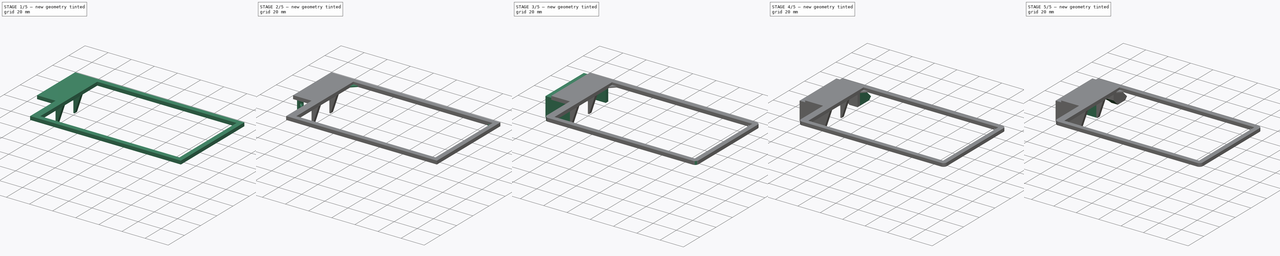
[diagram: build sequence overview — one tinted view per stage of 5, left to right]
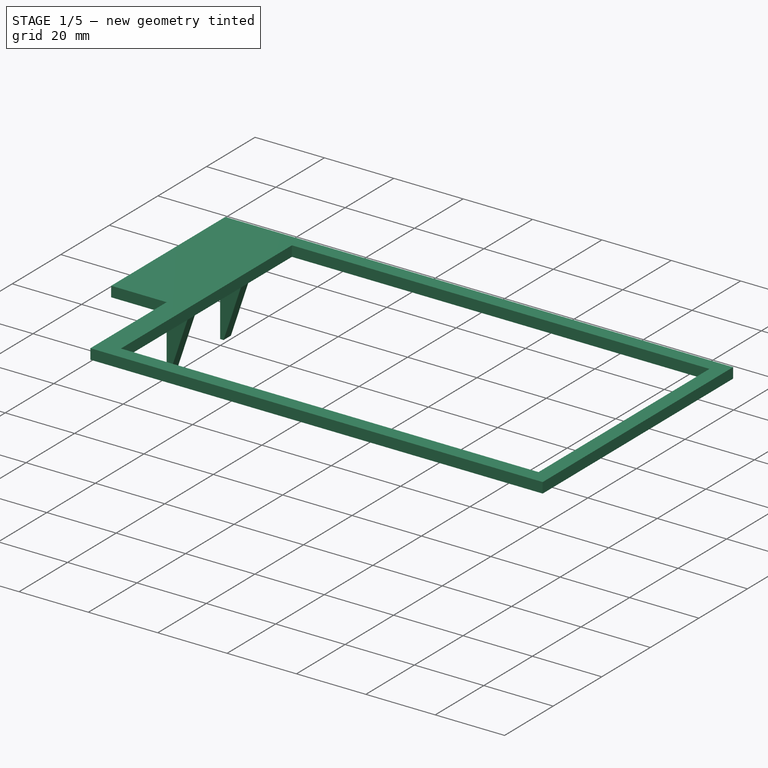
[diagram: stage 1 of 5 — iso view after this stage's code; geometry added in this stage tinted green]
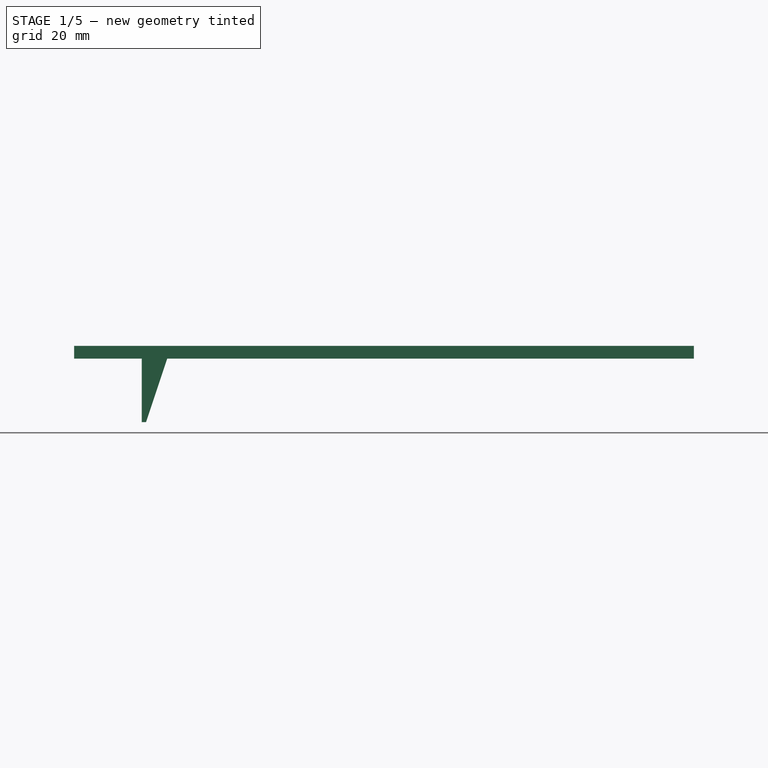
[diagram: stage 1 of 5 — front view after this stage's code; geometry added in this stage tinted green]
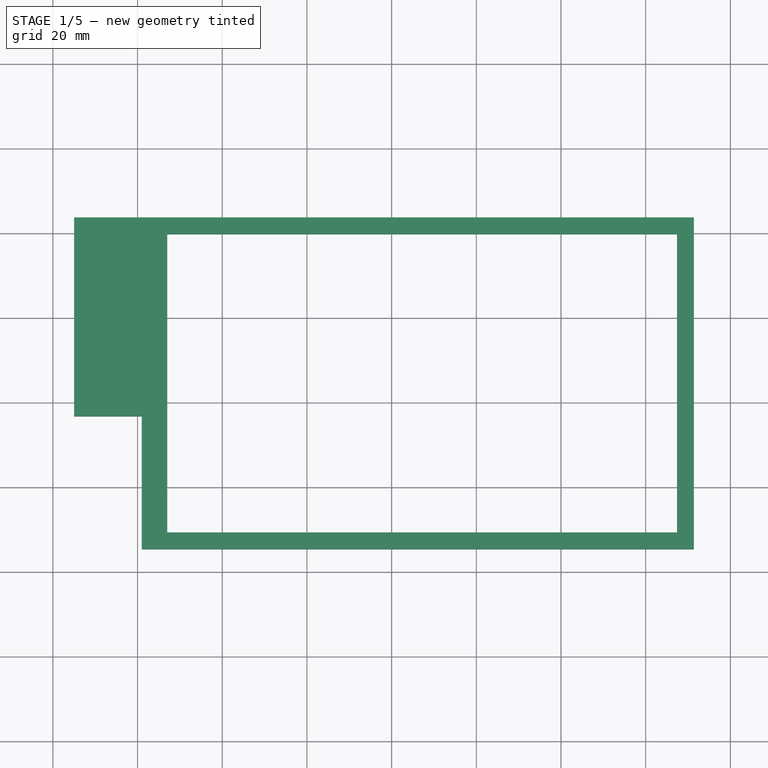
[diagram: stage 1 of 5 — top view after this stage's code; geometry added in this stage tinted green]
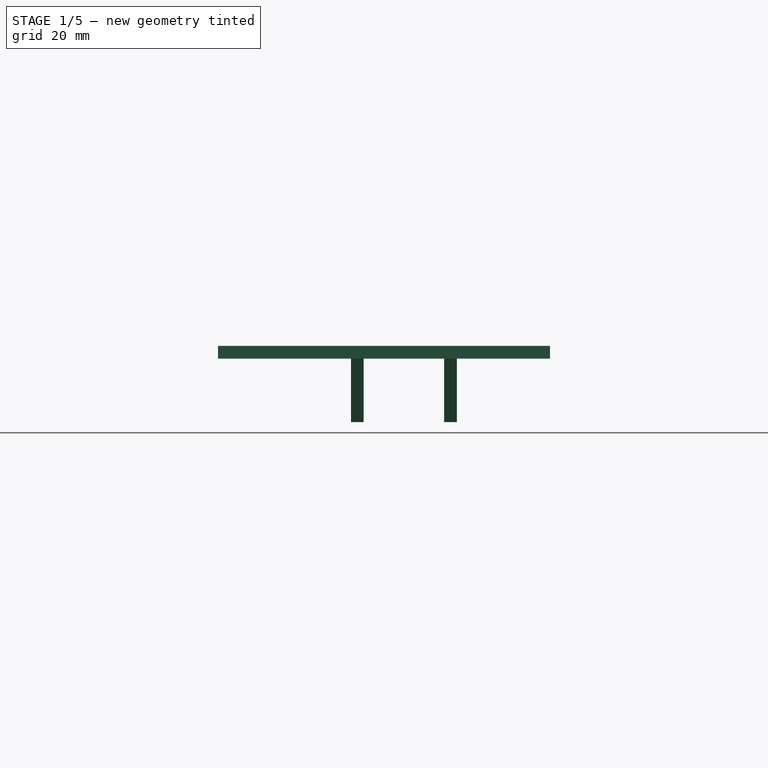
[diagram: stage 1 of 5 — right view after this stage's code; geometry added in this stage tinted green]
FCSTD DOCUMENT  (FreeCAD 0.20R29177 (Git))
Label: workspace_maginifier
License: All rights reserved
LicenseURL: http://en.wikipedia.org/wiki/All_rights_reserved
objects: Sketcher::SketchObject×14, PartDesign::Pad×8, PartDesign::Pocket×6, PartDesign::Body×2, PartDesign::Fillet×1, PartDesign::Chamfer×1
note: 48 computed .brp shape members not serialized (recipe doc carries the construction recipe); baked Part::Feature solids carry a one-line shape summary decoded from their .brp

FEATURE [Sketcher::SketchObject] Sketch007  label="Magnifier Lens Base Sketch"
  AttachmentOffset = pos=(0,0,6.75) rot=(0,0,1;0rad)
  FullyConstrained = true
  MapMode = 5
  Placement = pos=(0,0,6.75) rot=(0,0,1;0rad)
  Support = -> [XY_Plane001]
  sketch-geometry (16):
    g0: LineSegment StartX=5 StartY=23.5 StartZ=0 EndX=21 EndY=23.5 EndZ=0
    g1: LineSegment StartX=21 StartY=23.5 StartZ=0 EndX=21 EndY=-23.5 EndZ=0
    g2: LineSegment StartX=21 StartY=-23.5 StartZ=0 EndX=5 EndY=-23.5 EndZ=0
    g3: LineSegment StartX=5 StartY=-23.5 StartZ=0 EndX=5 EndY=23.5 EndZ=0
    g4: LineSegment StartX=27 StartY=19.5 StartZ=0 EndX=147.4 EndY=19.5 EndZ=0
    g5: LineSegment StartX=147.4 StartY=19.5 StartZ=0 EndX=147.4 EndY=-50.9 EndZ=0
    g6: LineSegment StartX=147.4 StartY=-50.9 StartZ=0 EndX=27 EndY=-50.9 EndZ=0
    g7: LineSegment StartX=27 StartY=-50.9 StartZ=0 EndX=27 EndY=19.5 EndZ=0
    g8: LineSegment StartX=21 StartY=23.5 StartZ=0 EndX=151.4 EndY=23.5 EndZ=0
    g9: LineSegment StartX=151.4 StartY=23.5 StartZ=0 EndX=151.4 EndY=-54.9 EndZ=0
    g10: LineSegment StartX=151.4 StartY=-54.9 StartZ=0 EndX=21 EndY=-54.9 EndZ=0
    g11: LineSegment StartX=21 StartY=-54.9 StartZ=0 EndX=21 EndY=-23.5 EndZ=0
    g12: LineSegment StartX=147.4 StartY=19.5 StartZ=0 EndX=147.4 EndY=23.5 EndZ=0
    g13: LineSegment StartX=147.4 StartY=-50.9 StartZ=0 EndX=151.4 EndY=-50.9 EndZ=0
    g14: LineSegment StartX=27 StartY=-50.9 StartZ=0 EndX=27 EndY=-54.9 EndZ=0
    g15: LineSegment StartX=27 StartY=19.5 StartZ=0 EndX=21 EndY=19.5 EndZ=0
  constraints (47):
    c: Coincident(g0,g1)
    c: Coincident(g1,g2)
    c: Coincident(g2,g3)
    c: Coincident(g3,g0)
    c: Horizontal(g0)
    c: Horizontal(g2)
    c: Vertical(g1)
    c: Vertical(g3)
    c: DistanceX(g-1,g2) = 5
    c: DistanceY(g1,g1) = 47
    c: DistanceY(g2,g-1) = 23.5
    c: Coincident(g4,g5)
    c: Coincident(g5,g6)
    c: Coincident(g6,g7)
    c: Coincident(g7,g4)
    c: Horizontal(g4)
    c: Horizontal(g6)
    c: Vertical(g5)
    c: Vertical(g7)
    c: DistanceX(g4,g4) = 120.4
    c: DistanceY(g5,g5) = 70.4
    c: DistanceX(g2,g2) = 16
    c: Coincident(g8,g0)
    c: Horizontal(g8)
    c: Coincident(g9,g8)
    c: Vertical(g9)
    c: Coincident(g10,g9)
    c: Horizontal(g10)
    c: Coincident(g11,g10)
    c: Coincident(g11,g2)
    c: Vertical(g11)
    c: Coincident(g12,g4)
    c: PointOnObject(g12,g8)
    c: Vertical(g12)
    c: Coincident(g13,g5)
    c: PointOnObject(g13,g9)
    c: Horizontal(g13)
    c: Coincident(g14,g6)
    c: Vertical(g14)
    c: PointOnObject(g14,g10)
    c: DistanceY(g14,g14) = 4
    c: Equal(g14,g13)
    c: Equal(g13,g12)
    c: Coincident(g15,g4)
    c: PointOnObject(g15,g1)
    c: Horizontal(g15)
    c: DistanceX(g15,g15) = 6
FEATURE [PartDesign::Pad] Pad004  label="Magnifier Lens Base"
  Direction = (0,0,1)
  Length = 3
  Length2 = 10
  Profile = -> Sketch007
  ReferenceAxis = -> Sketch007 [N_Axis]
  Type = 0
FEATURE [PartDesign::Body] Body  label="lens_and_arm_mount"
  Group = -> [Sketch,Pad,Sketch001,Pad001,Sketch002,Pocket,Sketch003,Pad002,Sketch004,Pocket001,Sketch005,Pocket002,Sketch006,Pad003,Sketch008,Pocket003]
  Origin = -> Origin
  Tip = -> Pocket003
FEATURE [Sketcher::SketchObject] Sketch009  label="Magnifier Base Support Sketch"
  ExternalGeometry = -> [Pad004]
  FullyConstrained = true
  MapMode = 5
  Placement = pos=(0,0,6.75) rot=(1,0,0;3.14159rad)
  Support = -> [Pad004]
  sketch-geometry (11):
    g0: LineSegment StartX=27 StartY=1.5 StartZ=0 EndX=21 EndY=1.5 EndZ=0
    g1: LineSegment StartX=21 StartY=1.5 StartZ=0 EndX=21 EndY=-1.5 EndZ=0
    g2: LineSegment StartX=21 StartY=-1.5 StartZ=0 EndX=27 EndY=-1.5 EndZ=0
    g3: LineSegment StartX=27 StartY=-1.5 StartZ=0 EndX=27 EndY=1.5 EndZ=0
    g4: LineSegment StartX=27 StartY=23.5 StartZ=0 EndX=21 EndY=23.5 EndZ=0
    g5: LineSegment StartX=21 StartY=23.5 StartZ=0 EndX=21 EndY=20.5 EndZ=0
    g6: LineSegment StartX=21 StartY=20.5 StartZ=0 EndX=27 EndY=20.5 EndZ=0
    g7: LineSegment StartX=27 StartY=20.5 StartZ=0 EndX=27 EndY=23.5 EndZ=0
    g8: LineSegment StartX=21 StartY=20.5 StartZ=0 EndX=21 EndY=1.5 EndZ=0
    g9: LineSegment StartX=27 StartY=-19.5 StartZ=0 EndX=27 EndY=-1.5 EndZ=0
    g10: LineSegment StartX=27 StartY=1.5 StartZ=0 EndX=27 EndY=20.5 EndZ=0
  constraints (30):
    c: Coincident(g0,g1)
    c: Coincident(g1,g2)
    c: Coincident(g2,g3)
    c: Coincident(g3,g0)
    c: Horizontal(g0)
    c: Horizontal(g2)
    c: Vertical(g1)
    c: Vertical(g3)
    c: PointOnObject(g0,g-3)
    c: Coincident(g4,g5)
    c: Coincident(g5,g6)
    c: Coincident(g6,g7)
    c: Coincident(g7,g4)
    c: Horizontal(g4)
    c: Horizontal(g6)
    c: Vertical(g5)
    c: Vertical(g7)
    c: PointOnObject(g4,g-3)
    c: Coincident(g8,g5)
    c: Coincident(g8,g0)
    c: Vertical(g8)
    c: DistanceX(g4,g4) = 6
    c: Coincident(g9,g-3)
    c: Coincident(g9,g2)
    c: Coincident(g10,g0)
    c: Coincident(g10,g6)
    c: DistanceY(g3,g3) = 3
    c: DistanceY(g7,g7) = 3
    c: DistanceY(g9,g9) = 18
    c: DistanceY(g10,g10) = 19
FEATURE [PartDesign::Pad] Pad005  label="Magnifier Base Support"
  BaseFeature = -> Pad004
  Direction = (0,0,-1)
  Length = 15
  Length2 = 10
  Profile = -> Sketch009
  ReferenceAxis = -> Sketch009 [N_Axis]
  Type = 0
FEATURE [Sketcher::SketchObject] Sketch010  label="Magnifier Base Cut Sketch"
  ExternalGeometry = -> [Pad005]
  FullyConstrained = true
  MapMode = 5
  Placement = pos=(0,-23.5,0) rot=(1,0,0;1.5708rad)
  Support = -> [Pad005]
  sketch-geometry (4):
    g0: LineSegment StartX=21 StartY=-8.25 StartZ=0 EndX=22 EndY=-8.25 EndZ=0
    g1: LineSegment StartX=27 StartY=6.75 StartZ=0 EndX=22 EndY=-8.25 EndZ=0
    g2: LineSegment StartX=22 StartY=-8.25 StartZ=0 EndX=27 EndY=-8.25 EndZ=0
    g3: LineSegment StartX=27 StartY=6.75 StartZ=0 EndX=27 EndY=-8.25 EndZ=0
  constraints (10):
    c: Coincident(g0,g-4)
    c: Horizontal(g0)
    c: Coincident(g1,g-3)
    c: Coincident(g1,g0)
    c: Coincident(g2,g1)
    c: Horizontal(g2)
    c: Coincident(g3,g1)
    c: Coincident(g3,g2)
    c: Vertical(g3)
    c: DistanceX(g0,g0) = 1
FEATURE [PartDesign::Pocket] Pocket004  label="Magnifier Base Cut"
  BaseFeature = -> Pad005
  Direction = (0,1,-2e-16)
  Length = 5
  Length2 = 5
  Profile = -> Sketch010
  ReferenceAxis = -> Sketch010 [N_Axis]
  Refine = true
  Type = 1
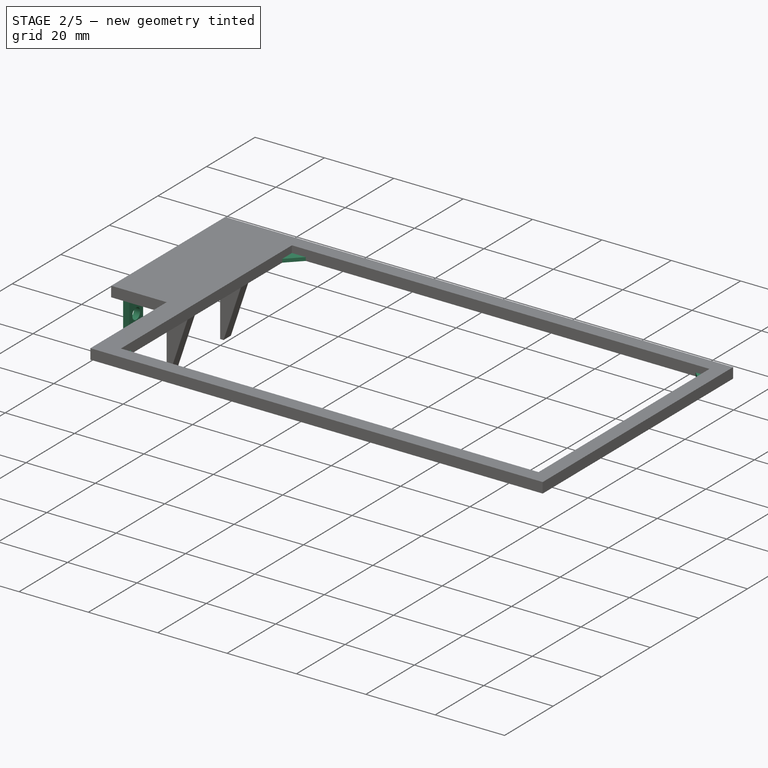
[diagram: stage 2 of 5 — iso view after this stage's code; geometry added in this stage tinted green]
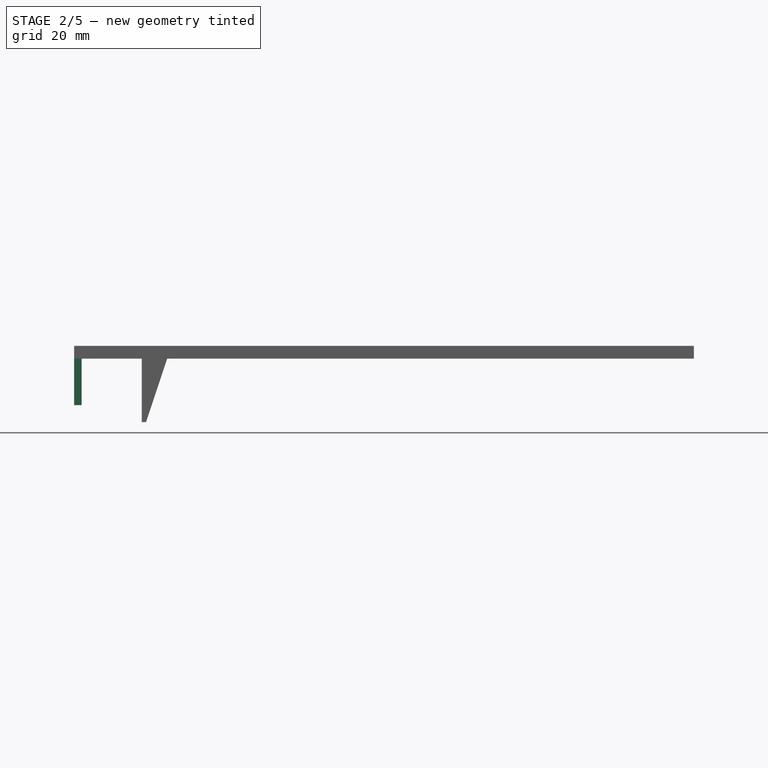
[diagram: stage 2 of 5 — front view after this stage's code; geometry added in this stage tinted green]
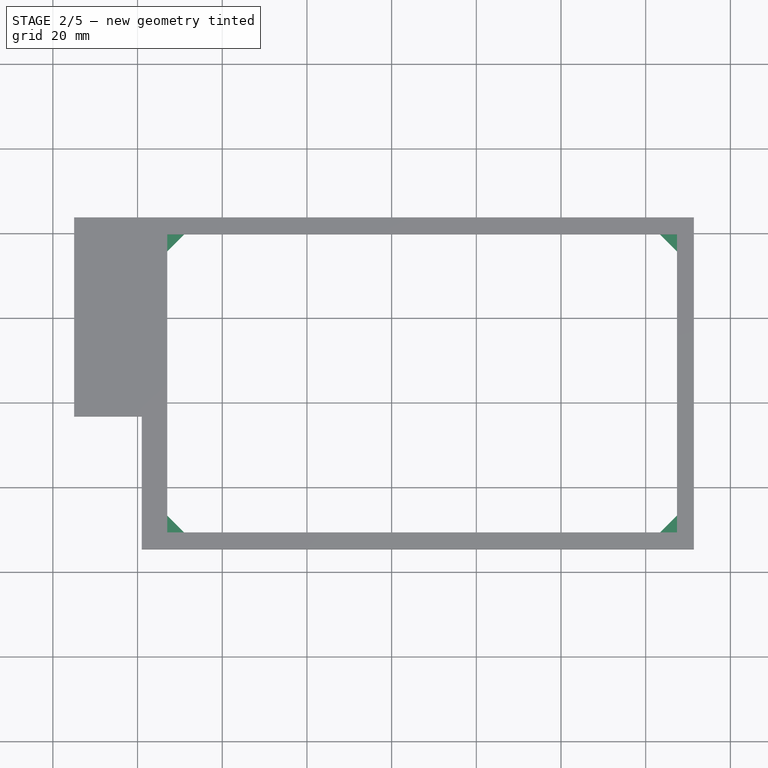
[diagram: stage 2 of 5 — top view after this stage's code; geometry added in this stage tinted green]
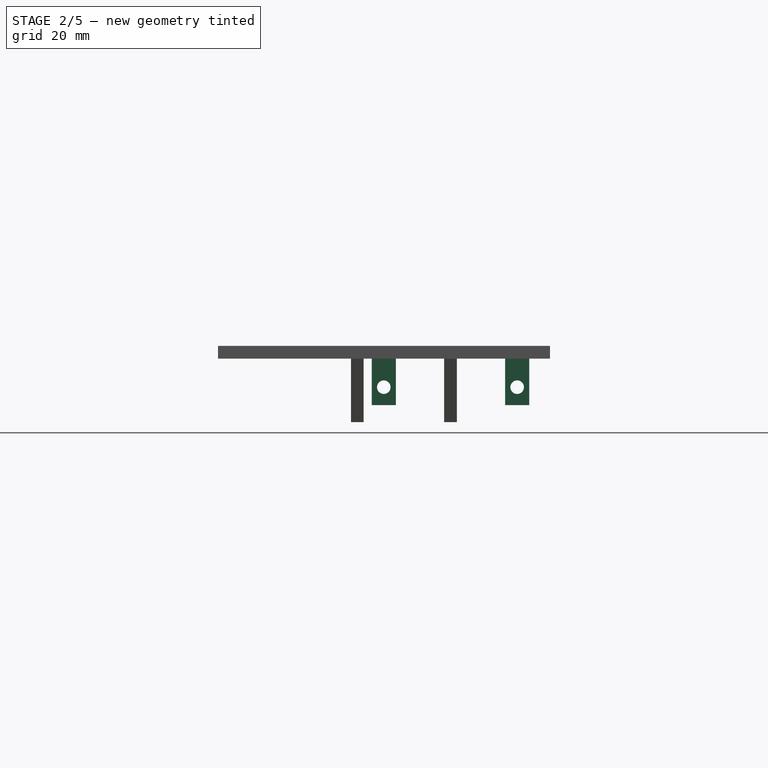
[diagram: stage 2 of 5 — right view after this stage's code; geometry added in this stage tinted green]
FEATURE [Sketcher::SketchObject] Sketch011  label="Maginfier Lens Hold Corner Sketch"
  ExternalGeometry = -> [Pocket004]
  FullyConstrained = true
  MapMode = 5
  Placement = pos=(0,0,6.75) rot=(1,0,0;3.14159rad)
  Support = -> [Pocket004]
  sketch-geometry (20):
    g0: LineSegment StartX=25 StartY=52.9 StartZ=0 EndX=25 EndY=44.9 EndZ=0
    g1: LineSegment StartX=25 StartY=52.9 StartZ=0 EndX=33 EndY=52.9 EndZ=0
    g2: LineSegment StartX=25 StartY=44.9 StartZ=0 EndX=33 EndY=52.9 EndZ=0
    g3: LineSegment StartX=25 StartY=-21.5 StartZ=0 EndX=25 EndY=-13.5 EndZ=0
    g4: LineSegment StartX=25 StartY=-13.5 StartZ=0 EndX=33 EndY=-21.5 EndZ=0
    g5: LineSegment StartX=33 StartY=-21.5 StartZ=0 EndX=25 EndY=-21.5 EndZ=0
    g6: LineSegment StartX=149.4 StartY=-21.5 StartZ=0 EndX=149.4 EndY=-13.5 EndZ=0
    g7: LineSegment StartX=149.4 StartY=-13.5 StartZ=0 EndX=141.4 EndY=-21.5 EndZ=0
    g8: LineSegment StartX=141.4 StartY=-21.5 StartZ=0 EndX=149.4 EndY=-21.5 EndZ=0
    g9: LineSegment StartX=149.4 StartY=52.9 StartZ=0 EndX=141.4 EndY=52.9 EndZ=0
    g10: LineSegment StartX=141.4 StartY=52.9 StartZ=0 EndX=149.4 EndY=44.9 EndZ=0
    g11: LineSegment StartX=149.4 StartY=44.9 StartZ=0 EndX=149.4 EndY=52.9 EndZ=0
    g12: LineSegment StartX=27 StartY=50.9 StartZ=0 EndX=27 EndY=52.9 EndZ=0
    g13: LineSegment StartX=27 StartY=50.9 StartZ=0 EndX=25 EndY=50.9 EndZ=0
    g14: LineSegment StartX=27 StartY=-19.5 StartZ=0 EndX=27 EndY=-21.5 EndZ=0
    g15: LineSegment StartX=27 StartY=-19.5 StartZ=0 EndX=25 EndY=-19.5 EndZ=0
    g16: LineSegment StartX=147.4 StartY=-19.5 StartZ=0 EndX=147.4 EndY=-21.5 EndZ=0
    g17: LineSegment StartX=147.4 StartY=-19.5 StartZ=0 EndX=149.4 EndY=-19.5 EndZ=0
    g18: LineSegment StartX=147.4 StartY=50.9 StartZ=0 EndX=147.4 EndY=52.9 EndZ=0
    g19: LineSegment StartX=147.4 StartY=50.9 StartZ=0 EndX=149.4 EndY=50.9 EndZ=0
  constraints (60):
    c: Vertical(g0)
    c: Coincident(g1,g0)
    c: Horizontal(g1)
    c: Coincident(g2,g0)
    c: Coincident(g2,g1)
    c: Vertical(g3)
    c: Coincident(g4,g3)
    c: Coincident(g5,g4)
    c: Coincident(g5,g3)
    c: Horizontal(g5)
    c: Vertical(g6)
    c: Coincident(g7,g6)
    c: Coincident(g8,g7)
    c: Coincident(g8,g6)
    c: Horizontal(g8)
    c: Horizontal(g9)
    c: Coincident(g10,g9)
    c: Coincident(g11,g10)
    c: Coincident(g11,g9)
    c: Vertical(g11)
    c: Coincident(g12,g-3)
    c: PointOnObject(g12,g1)
    c: Coincident(g13,g12)
    c: PointOnObject(g13,g0)
    c: Horizontal(g13)
    c: Vertical(g12)
    c: Coincident(g14,g-4)
    c: PointOnObject(g14,g5)
    c: Vertical(g14)
    c: Coincident(g15,g14)
    c: PointOnObject(g15,g3)
    c: Coincident(g16,g-5)
    c: PointOnObject(g16,g8)
    c: Vertical(g16)
    c: Coincident(g17,g16)
    c: PointOnObject(g17,g6)
    c: Horizontal(g17)
    c: Coincident(g18,g-6)
    c: PointOnObject(g18,g9)
    c: Vertical(g18)
    c: Coincident(g19,g18)
    c: PointOnObject(g19,g11)
    c: Horizontal(g19)
    c: DistanceY(g12,g12) = 2
    c: Equal(g12,g13)
    c: Equal(g13,g14)
    c: Equal(g14,g15)
    c: Equal(g15,g16)
    c: Equal(g16,g17)
    c: Equal(g17,g19)
    c: Equal(g19,g18)
    c: DistanceX(g1,g1) = 8
    c: Equal(g1,g0)
    c: Equal(g0,g3)
    c: Equal(g3,g5)
    c: Equal(g5,g8)
    c: Equal(g8,g6)
    c: Equal(g6,g9)
    c: Equal(g9,g11)
    c: Horizontal(g15)
FEATURE [PartDesign::Pad] Pad006  label="Magnifier Lens Hold Corners"
  BaseFeature = -> Pocket004
  Direction = (0,0,-1)
  Length = 1
  Length2 = 10
  Profile = -> Sketch011
  ReferenceAxis = -> Sketch011 [N_Axis]
  Reversed = true
  Type = 0
FEATURE [Sketcher::SketchObject] Sketch012  label="Screw Tab Sketch"
  ExternalGeometry = -> [Pad006]
  FullyConstrained = true
  MapMode = 5
  Placement = pos=(0,0,6.75) rot=(1,0,0;3.14159rad)
  Support = -> [Pad006]
  sketch-geometry (11):
    g0: LineSegment StartX=5 StartY=18.6 StartZ=0 EndX=6.8 EndY=18.6 EndZ=0
    g1: LineSegment StartX=6.8 StartY=18.6 StartZ=0 EndX=6.8 EndY=12.9 EndZ=0
    g2: LineSegment StartX=6.8 StartY=12.9 StartZ=0 EndX=5 EndY=12.9 EndZ=0
    g3: LineSegment StartX=5 StartY=12.9 StartZ=0 EndX=5 EndY=18.6 EndZ=0
    g4: LineSegment StartX=5 StartY=-12.9 StartZ=0 EndX=6.8 EndY=-12.9 EndZ=0
    g5: LineSegment StartX=6.8 StartY=-12.9 StartZ=0 EndX=6.8 EndY=-18.6 EndZ=0
    g6: LineSegment StartX=6.8 StartY=-18.6 StartZ=0 EndX=5 EndY=-18.6 EndZ=0
    g7: LineSegment StartX=5 StartY=-18.6 StartZ=0 EndX=5 EndY=-12.9 EndZ=0
    g8: LineSegment StartX=5 StartY=23.5 StartZ=0 EndX=5 EndY=18.6 EndZ=0
    g9: LineSegment StartX=5 StartY=-18.6 StartZ=0 EndX=5 EndY=-23.5 EndZ=0
    g10: LineSegment StartX=6.8 StartY=12.9 StartZ=0 EndX=6.8 EndY=-12.9 EndZ=0
  constraints (30):
    c: Coincident(g0,g1)
    c: Coincident(g1,g2)
    c: Coincident(g2,g3)
    c: Coincident(g3,g0)
    c: Horizontal(g0)
    c: Horizontal(g2)
    c: Vertical(g1)
    c: Vertical(g3)
    c: Coincident(g4,g5)
    c: Coincident(g5,g6)
    c: Coincident(g6,g7)
    c: Coincident(g7,g4)
    c: Horizontal(g4)
    c: Horizontal(g6)
    c: Vertical(g5)
    c: Vertical(g7)
    c: Coincident(g8,g-3)
    c: Coincident(g8,g0)
    c: Vertical(g8)
    c: Coincident(g9,g6)
    c: Coincident(g9,g-4)
    c: Vertical(g9)
    c: Coincident(g10,g1)
    c: Coincident(g10,g4)
    c: Vertical(g10)
    c: DistanceX(g0,g0) = 1.8
    c: DistanceY(g9,g9) = 4.9
    c: Equal(g8,g9)
    c: DistanceY(g1,g1) = 5.7
    c: Equal(g1,g5)
FEATURE [PartDesign::Pad] Pad007  label="Screw Tab Pad"
  BaseFeature = -> Pad006
  Direction = (0,0,-1)
  Length = 11
  Length2 = 10
  Profile = -> Sketch012
  ReferenceAxis = -> Sketch012 [N_Axis]
  Type = 0
FEATURE [Sketcher::SketchObject] Sketch013  label="Screw Tab Hole Sketch"
  ExternalGeometry = -> [Pad007]
  FullyConstrained = true
  MapMode = 5
  Placement = pos=(5,0,0) rot=(0.57735,-0.57735,-0.57735;2.0944rad)
  Support = -> [Pad007]
  sketch-geometry (6):
    g0: Circle CenterX=-15.75 CenterY=0 CenterZ=0 NormalX=0 NormalY=0 NormalZ=1 AngleXU=0 Radius=1.6
    g1: Circle CenterX=15.75 CenterY=0 CenterZ=0 NormalX=0 NormalY=0 NormalZ=1 AngleXU=0 Radius=1.6
    g2: LineSegment StartX=-18.6 StartY=-4.25 StartZ=0 EndX=-15.75 EndY=0 EndZ=0
    g3: LineSegment StartX=-15.75 StartY=0 StartZ=0 EndX=-12.9 EndY=-4.25 EndZ=0
    g4: LineSegment StartX=12.9 StartY=-4.25 StartZ=0 EndX=15.75 EndY=0 EndZ=0
    g5: LineSegment StartX=15.75 StartY=0 StartZ=0 EndX=18.6 EndY=-4.25 EndZ=0
  constraints (14):
    c: PointOnObject(g0,g-1)
    c: PointOnObject(g1,g-1)
    c: Coincident(g2,g-3)
    c: Coincident(g2,g0)
    c: Coincident(g3,g0)
    c: Coincident(g3,g-3)
    c: Coincident(g4,g-4)
    c: Coincident(g4,g1)
    c: Coincident(g5,g1)
    c: Coincident(g5,g-4)
    c: Equal(g2,g3)
    c: Equal(g4,g5)
    c: Diameter(g0) = 3.2
    c: Equal(g0,g1)
FEATURE [PartDesign::Pocket] Pocket005  label="Screw Tab Hole"
  BaseFeature = -> Pad007
  Direction = (1,0,0)
  Length = 5
  Length2 = 5
  Profile = -> Sketch013
  ReferenceAxis = -> Sketch013 [N_Axis]
  Type = 2
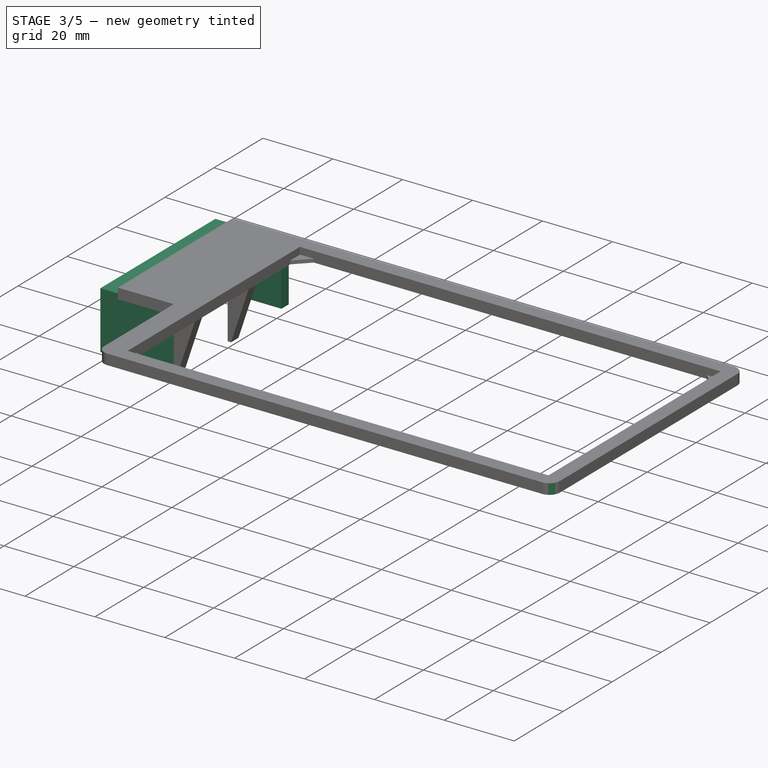
[diagram: stage 3 of 5 — iso view after this stage's code; geometry added in this stage tinted green]
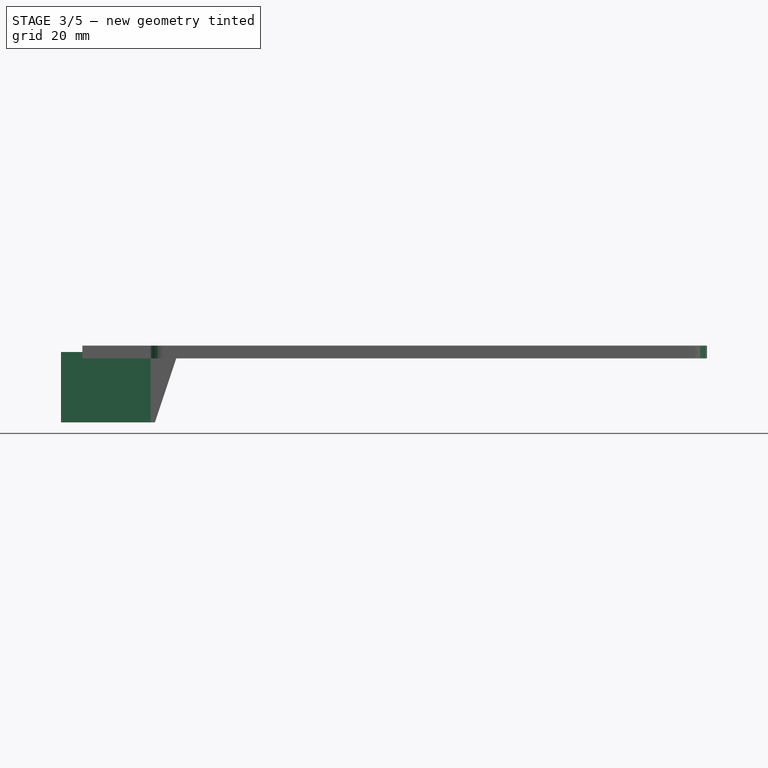
[diagram: stage 3 of 5 — front view after this stage's code; geometry added in this stage tinted green]
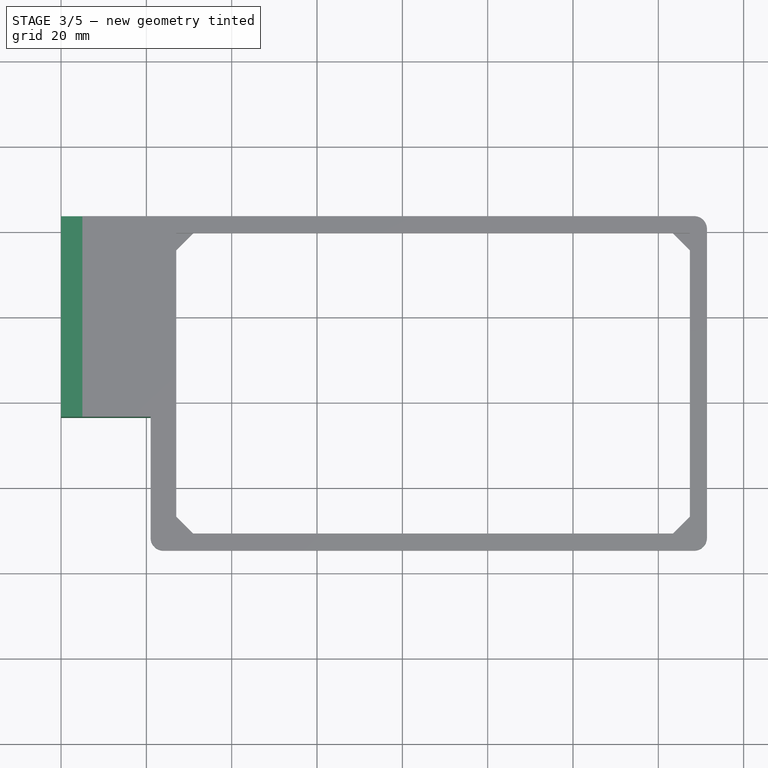
[diagram: stage 3 of 5 — top view after this stage's code; geometry added in this stage tinted green]
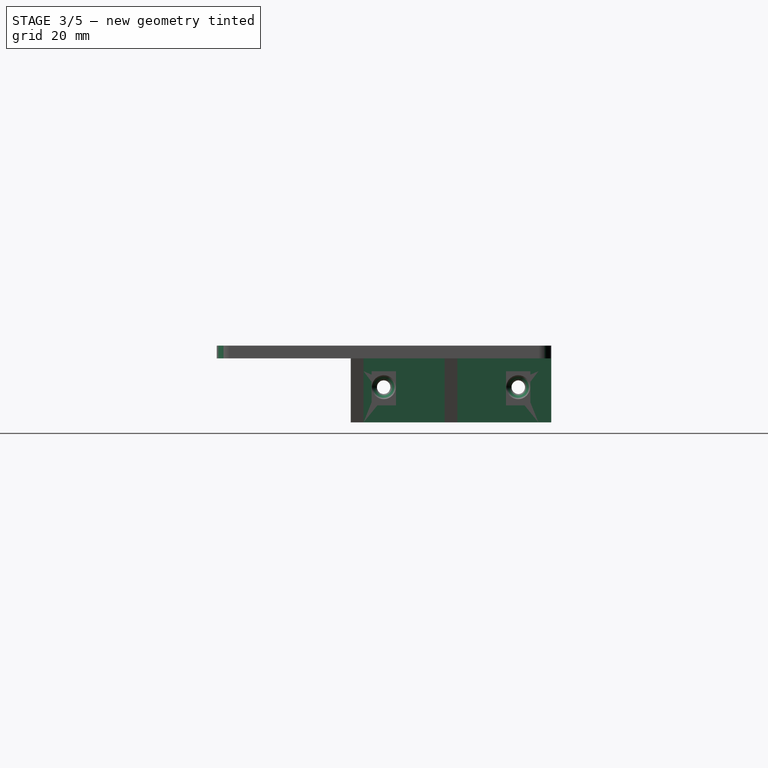
[diagram: stage 3 of 5 — right view after this stage's code; geometry added in this stage tinted green]
FEATURE [Sketcher::SketchObject] Sketch  label="Lens Screw Mount Sketch"
  FullyConstrained = true
  MapMode = 5
  Placement = pos=(0,0,0) rot=(0.57735,0.57735,0.57735;2.0944rad)
  Support = -> [YZ_Plane]
  sketch-geometry (8):
    g0: LineSegment StartX=-23.5 StartY=8.25 StartZ=0 EndX=23.5 EndY=8.25 EndZ=0
    g1: LineSegment StartX=23.5 StartY=8.25 StartZ=0 EndX=23.5 EndY=-8.25 EndZ=0
    g2: LineSegment StartX=23.5 StartY=-8.25 StartZ=0 EndX=-23.5 EndY=-8.25 EndZ=0
    g3: LineSegment StartX=-23.5 StartY=-8.25 StartZ=0 EndX=-23.5 EndY=8.25 EndZ=0
    g4: Circle CenterX=-15.8 CenterY=0 CenterZ=0 NormalX=0 NormalY=0 NormalZ=1 AngleXU=0 Radius=1.6
    g5: Circle CenterX=15.8 CenterY=0 CenterZ=0 NormalX=0 NormalY=0 NormalZ=1 AngleXU=0 Radius=1.6
    g6: LineSegment StartX=-15.8 StartY=0 StartZ=0 EndX=-23.5 EndY=0 EndZ=0
    g7: LineSegment StartX=15.8 StartY=0 StartZ=0 EndX=23.5 EndY=0 EndZ=0
  constraints (22):
    c: Coincident(g0,g1)
    c: Coincident(g1,g2)
    c: Coincident(g2,g3)
    c: Coincident(g3,g0)
    c: Horizontal(g2)
    c: Vertical(g1)
    c: DistanceY(g3,g3) = 16.5
    c: DistanceX(g0,g0) = 47
    c: Symmetric(g0,g0,g-2)
    c: Symmetric(g0,g2,g-1)
    c: PointOnObject(g5,g-1)
    c: PointOnObject(g4,g-1)
    c: Coincident(g6,g4)
    c: PointOnObject(g6,g3)
    c: Horizontal(g6)
    c: Coincident(g7,g5)
    c: PointOnObject(g7,g1)
    c: Horizontal(g7)
    c: Equal(g7,g6)
    c: DistanceX(g6,g6) = 7.7
    c: Diameter(g4) = 3.2
    c: Equal(g4,g5)
FEATURE [PartDesign::Pad] Pad  label="Lens Screw Mount"
  Direction = (1,-2e-16,3e-16)
  Length = 5
  Length2 = 10
  Placement = pos=(0,0,0) rot=(0.57735,0.57735,0.57735;2.0944rad)
  Profile = -> Sketch
  ReferenceAxis = -> Sketch [N_Axis]
  Type = 0
FEATURE [Sketcher::SketchObject] Sketch001  label="Top Body Sketch"
  ExternalGeometry = -> [Pad]
  FullyConstrained = true
  MapMode = 5
  Placement = pos=(5,-2.2e-15,1.7e-15) rot=(0.57735,0.57735,0.57735;2.0944rad)
  Support = -> [Pad]
  sketch-geometry (11):
    g0: LineSegment StartX=-23.5 StartY=-8.25 StartZ=0 EndX=-23.5 EndY=6.75 EndZ=0
    g1: LineSegment StartX=-23.5 StartY=6.75 StartZ=0 EndX=23.5 EndY=6.75 EndZ=0
    g2: LineSegment StartX=-23.5 StartY=-8.25 StartZ=0 EndX=-20.5 EndY=-8.25 EndZ=0
    g3: LineSegment StartX=-20.5 StartY=-8.25 StartZ=0 EndX=-20.5 EndY=3.75 EndZ=0
    g4: LineSegment StartX=-20.5 StartY=3.75 StartZ=0 EndX=20.5 EndY=3.75 EndZ=0
    g5: LineSegment StartX=23.5 StartY=6.75 StartZ=0 EndX=23.5 EndY=-8.25 EndZ=0
    g6: LineSegment StartX=20.5 StartY=3.75 StartZ=0 EndX=20.5 EndY=-8.25 EndZ=0
    g7: LineSegment StartX=20.5 StartY=-8.25 StartZ=0 EndX=23.5 EndY=-8.25 EndZ=0
    g8: GeomPoint X=-20.5 Y=3.75 Z=0
    g9: LineSegment StartX=-20.5 StartY=3.75 StartZ=0 EndX=-20.5 EndY=6.75 EndZ=0
    g10: LineSegment StartX=-23.5 StartY=6.75 StartZ=0 EndX=-23.5 EndY=8.25 EndZ=0
  constraints (28):
    c: Coincident(g0,g-3)
    c: Vertical(g0)
    c: Coincident(g1,g0)
    c: Horizontal(g1)
    c: Coincident(g2,g0)
    c: Horizontal(g2)
    c: Coincident(g3,g2)
    c: Vertical(g3)
    c: Coincident(g4,g3)
    c: Horizontal(g4)
    c: Coincident(g5,g1)
    c: Coincident(g5,g-6)
    c: Vertical(g5)
    c: Coincident(g6,g4)
    c: Vertical(g6)
    c: Coincident(g7,g6)
    c: Coincident(g7,g5)
    c: Horizontal(g7)
    c: DistanceX(g2,g2) = 3
    c: Equal(g2,g7)
    c: Coincident(g8,g3)
    c: Coincident(g9,g3)
    c: PointOnObject(g9,g1)
    c: Vertical(g9)
    c: Coincident(g10,g0)
    c: Coincident(g10,g-4)
    c: DistanceY(g9,g9) = 3
    c: DistanceY(g10,g10) = 1.5
FEATURE [PartDesign::Pad] Pad001  label="Top Body"
  BaseFeature = -> Pad
  Direction = (1,-4e-16,4e-16)
  Length = 16
  Length2 = 10
  Placement = pos=(0,0,0) rot=(0.57735,0.57735,0.57735;2.0944rad)
  Profile = -> Sketch001
  ReferenceAxis = -> Sketch001 [N_Axis]
  Type = 0
FEATURE [PartDesign::Fillet] Fillet
  Base = -> Pocket005 [Edge57,Edge55,Edge54]
  BaseFeature = -> Pocket005
  Radius = 3
  SupportTransform = false
  UseAllEdges = false
FEATURE [PartDesign::Chamfer] Chamfer
  Angle = 45
  Base = -> Fillet [Edge64,Edge79]
  BaseFeature = -> Fillet
  ChamferType = 0
  FlipDirection = false
  Size = 1.2
  Size2 = 1
  SupportTransform = false
  UseAllEdges = false
FEATURE [PartDesign::Body] Body001  label="maginifier_holder"
  Group = -> [Sketch007,Pad004,Sketch009,Pad005,Sketch010,Pocket004,Sketch011,Pad006,Sketch012,Pad007,Sketch013,Pocket005,Fillet,Chamfer]
  Origin = -> Origin001
  Tip = -> Chamfer
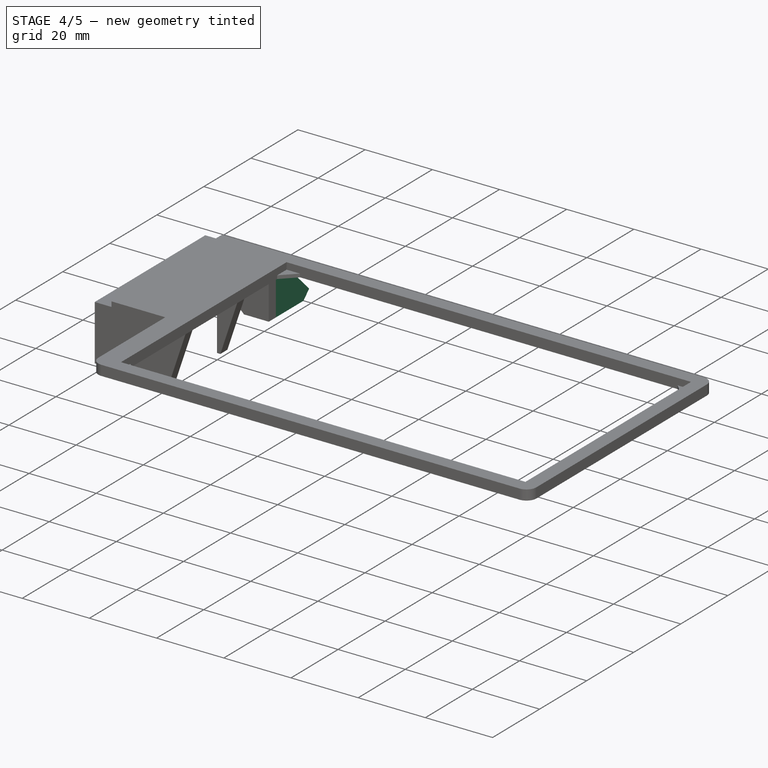
[diagram: stage 4 of 5 — iso view after this stage's code; geometry added in this stage tinted green]
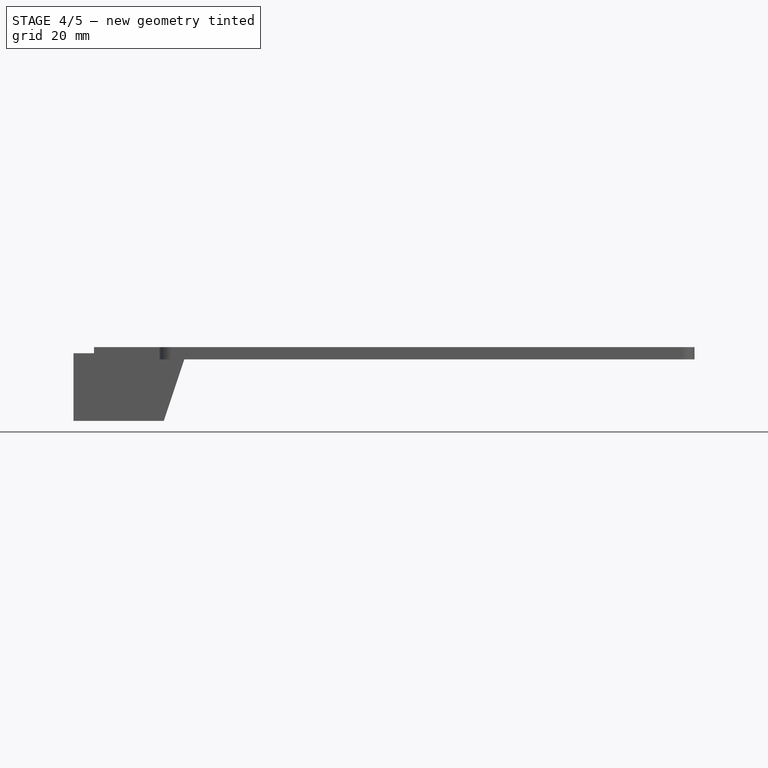
[diagram: stage 4 of 5 — front view after this stage's code; geometry added in this stage tinted green]
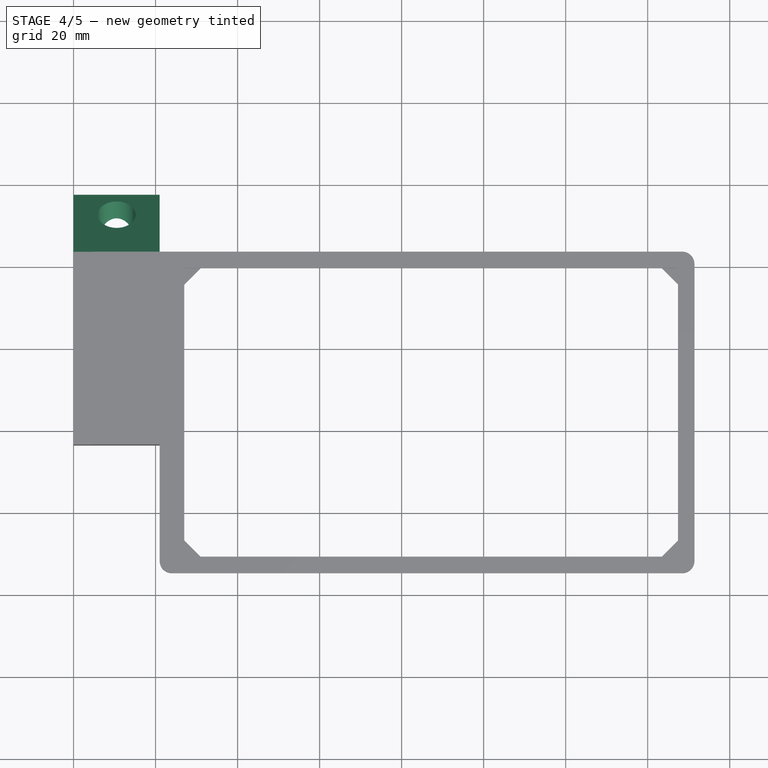
[diagram: stage 4 of 5 — top view after this stage's code; geometry added in this stage tinted green]
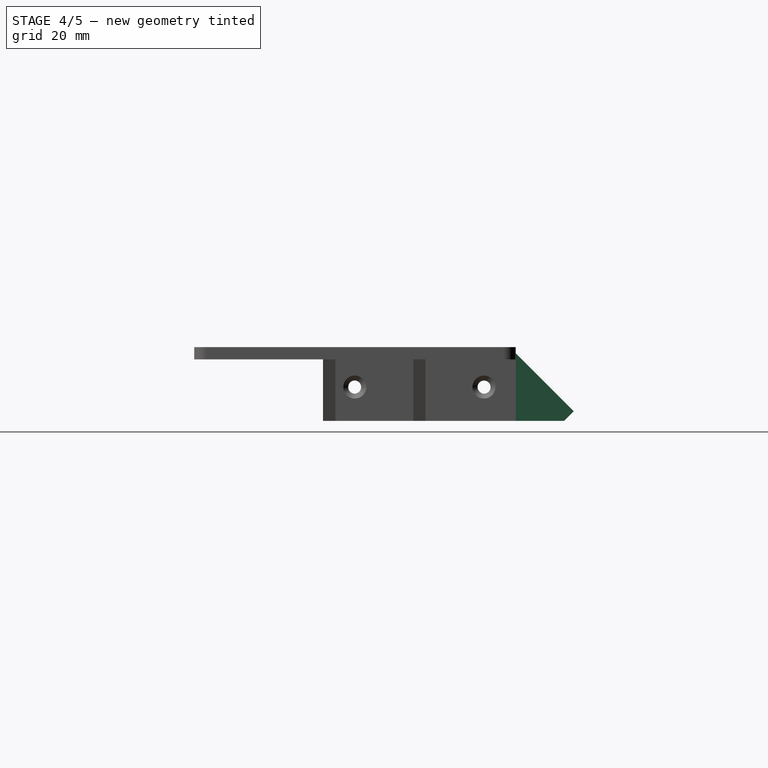
[diagram: stage 4 of 5 — right view after this stage's code; geometry added in this stage tinted green]
FEATURE [Sketcher::SketchObject] Sketch002  label="Top Slot Pocket Sketch"
  ExternalGeometry = -> [Pad001]
  FullyConstrained = true
  MapMode = 5
  Placement = pos=(-3.7e-15,2.2e-15,6.75) rot=(0,0,-1;1.5708rad)
  Support = -> [Pad001]
  sketch-geometry (11):
    g0: LineSegment StartX=-23.5 StartY=5 StartZ=0 EndX=-15.8 EndY=5 EndZ=0
    g1: LineSegment StartX=23.5 StartY=5 StartZ=0 EndX=15.8 EndY=5 EndZ=0
    g2: LineSegment StartX=-18.8 StartY=7 StartZ=0 EndX=-12.8 EndY=7 EndZ=0
    g3: LineSegment StartX=-12.8 StartY=7 StartZ=0 EndX=-12.8 EndY=5 EndZ=0
    g4: LineSegment StartX=-12.8 StartY=5 StartZ=0 EndX=-18.8 EndY=5 EndZ=0
    g5: LineSegment StartX=-18.8 StartY=5 StartZ=0 EndX=-18.8 EndY=7 EndZ=0
    g6: LineSegment StartX=12.8 StartY=7 StartZ=0 EndX=18.8 EndY=7 EndZ=0
    g7: LineSegment StartX=18.8 StartY=7 StartZ=0 EndX=18.8 EndY=5 EndZ=0
    g8: LineSegment StartX=18.8 StartY=5 StartZ=0 EndX=12.8 EndY=5 EndZ=0
    g9: LineSegment StartX=12.8 StartY=5 StartZ=0 EndX=12.8 EndY=7 EndZ=0
    g10: LineSegment StartX=-12.8 StartY=7 StartZ=0 EndX=12.8 EndY=7 EndZ=0
  constraints (30):
    c: Coincident(g0,g-3)
    c: Horizontal(g0)
    c: Coincident(g1,g-4)
    c: Horizontal(g1)
    c: DistanceX(g0,g0) = 7.7
    c: Equal(g1,g0)
    c: Coincident(g2,g3)
    c: Coincident(g3,g4)
    c: Coincident(g4,g5)
    c: Coincident(g5,g2)
    c: Horizontal(g2)
    c: Horizontal(g4)
    c: Vertical(g3)
    c: Vertical(g5)
    c: Coincident(g6,g7)
    c: Coincident(g7,g8)
    c: Coincident(g8,g9)
    c: Coincident(g9,g6)
    c: Horizontal(g6)
    c: Horizontal(g8)
    c: Vertical(g7)
    c: Vertical(g9)
    c: Symmetric(g8,g7,g1)
    c: Symmetric(g4,g3,g0)
    c: DistanceX(g4,g4) = 6
    c: Equal(g4,g8)
    c: Coincident(g10,g2)
    c: Coincident(g10,g6)
    c: Horizontal(g10)
    c: DistanceY(g3,g3) = 2
FEATURE [PartDesign::Pocket] Pocket  label="Top Slot Pocket"
  BaseFeature = -> Pad001
  Direction = (6e-16,-3e-16,-1)
  Length = 5
  Length2 = 5
  Placement = pos=(0,0,0) rot=(0.57735,0.57735,0.57735;2.0944rad)
  Profile = -> Sketch002
  ReferenceAxis = -> Sketch002 [N_Axis]
  Type = 2
FEATURE [Sketcher::SketchObject] Sketch003  label="Mount Base Sketch"
  ExternalGeometry = -> [Pad]
  FullyConstrained = true
  MapMode = 5
  Placement = pos=(5,-2.2e-15,1.7e-15) rot=(0.57735,0.57735,0.57735;2.0944rad)
  Support = -> [Pad]
  sketch-geometry (4):
    g0: LineSegment StartX=23.5 StartY=8.25 StartZ=0 EndX=37.6421 EndY=-5.89214 EndZ=0
    g1: LineSegment StartX=23.5 StartY=-8.25 StartZ=0 EndX=35.2843 EndY=-8.25 EndZ=0
    g2: LineSegment StartX=37.6421 StartY=-5.89214 StartZ=0 EndX=35.2843 EndY=-8.25 EndZ=0
    g3: LineSegment StartX=23.5 StartY=8.25 StartZ=0 EndX=23.5 EndY=-8.25 EndZ=0
  constraints (10):
    c: Coincident(g0,g-3)
    c: Coincident(g1,g-4)
    c: Coincident(g2,g0)
    c: Coincident(g2,g1)
    c: Perpendicular(g0,g2)
    c: Coincident(g3,g0)
    c: Coincident(g3,g1)
    c: Perpendicular(g3,g1)
    c: Angle(g3,g0) = 0.785398
    c: Distance(g0) = 20
FEATURE [PartDesign::Pad] Pad002  label="Mount Base"
  BaseFeature = -> Pocket
  Direction = (1,-4e-16,4e-16)
  Length = 16
  Length2 = 5
  Placement = pos=(0,0,0) rot=(0.57735,0.57735,0.57735;2.0944rad)
  Profile = -> Sketch003
  ReferenceAxis = -> Sketch003 [N_Axis]
  Type = 4
FEATURE [Sketcher::SketchObject] Sketch004  label="Mount Pocket Sketch"
  ExternalGeometry = -> [Pad002]
  FullyConstrained = true
  MapMode = 5
  Placement = pos=(1.8e-15,15.875,15.875) rot=(-0.357407,-0.357407,-0.862856;1.71777rad)
  Support = -> [Pad002]
  sketch-geometry (3):
    g0: Circle CenterX=-23.7834 CenterY=10.5 CenterZ=0 NormalX=0 NormalY=0 NormalZ=1 AngleXU=0 Radius=4.625
    g1: LineSegment StartX=-23.7834 StartY=10.5 StartZ=0 EndX=-30.7834 EndY=10.5 EndZ=0
    g2: LineSegment StartX=-30.7834 StartY=10.5 StartZ=0 EndX=-30.7834 EndY=21 EndZ=0
  constraints (8):
    c: Diameter(g0) = 9.25
    c: Coincident(g1,g0)
    c: Coincident(g2,g1)
    c: Coincident(g2,g-3)
    c: Vertical(g2)
    c: Horizontal(g1)
    c: DistanceX(g1,g1) = 7
    c: DistanceY(g2,g2) = 10.5
FEATURE [PartDesign::Pocket] Pocket001  label="Mount Pocket"
  BaseFeature = -> Pad002
  Direction = (-1e-16,-0.707107,-0.707107)
  Length = 5
  Length2 = 5
  Placement = pos=(0,0,0) rot=(0.57735,0.57735,0.57735;2.0944rad)
  Profile = -> Sketch004
  ReferenceAxis = -> Sketch004 [N_Axis]
  Type = 1
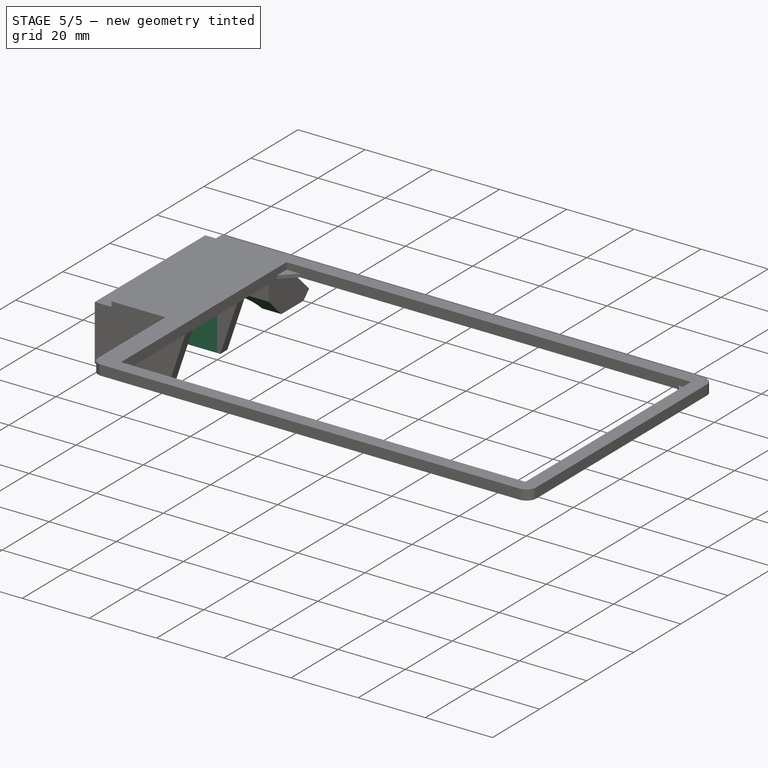
[diagram: stage 5 of 5 — iso view after this stage's code; geometry added in this stage tinted green]
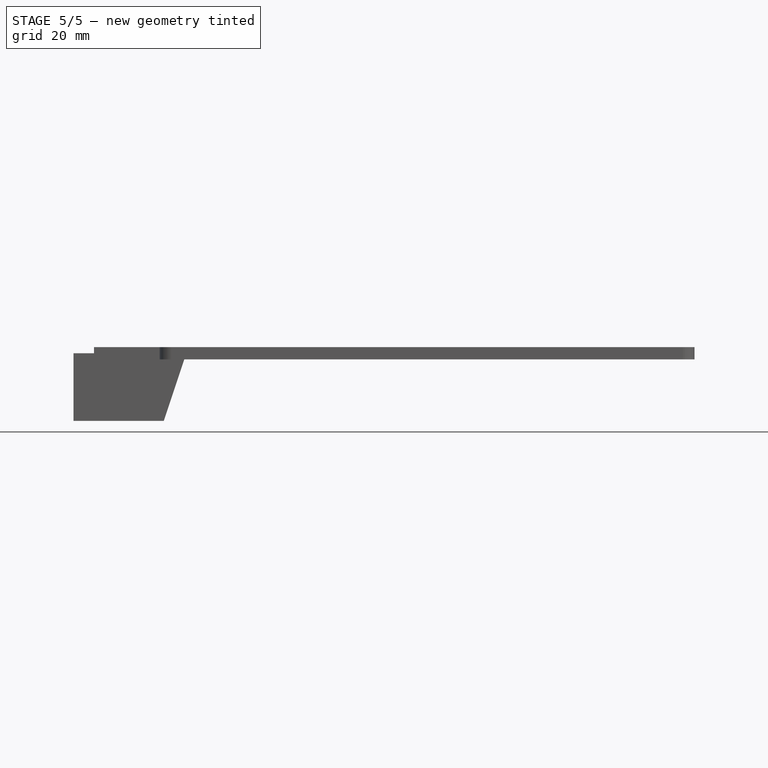
[diagram: stage 5 of 5 — front view after this stage's code; geometry added in this stage tinted green]
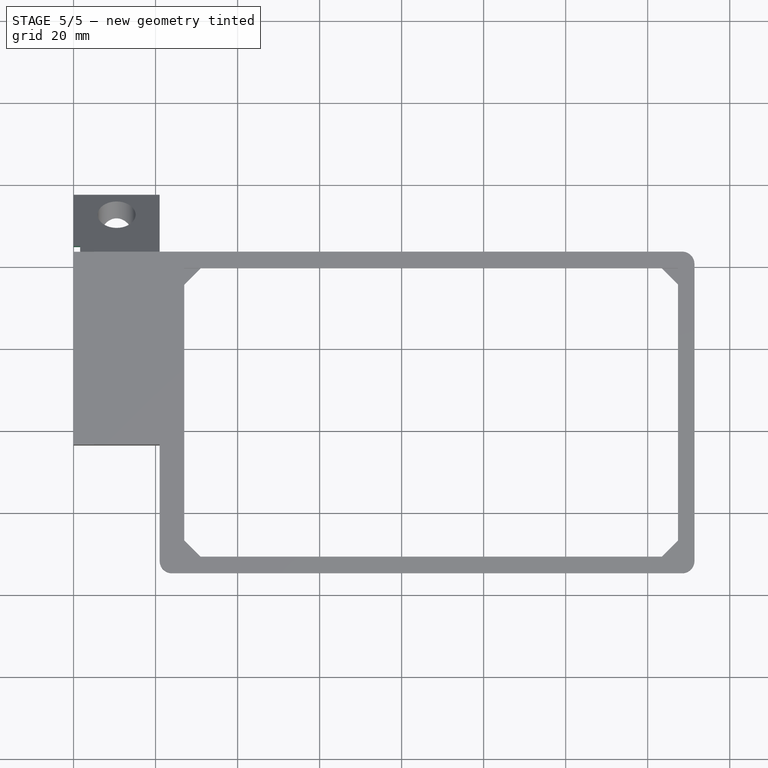
[diagram: stage 5 of 5 — top view after this stage's code; geometry added in this stage tinted green]
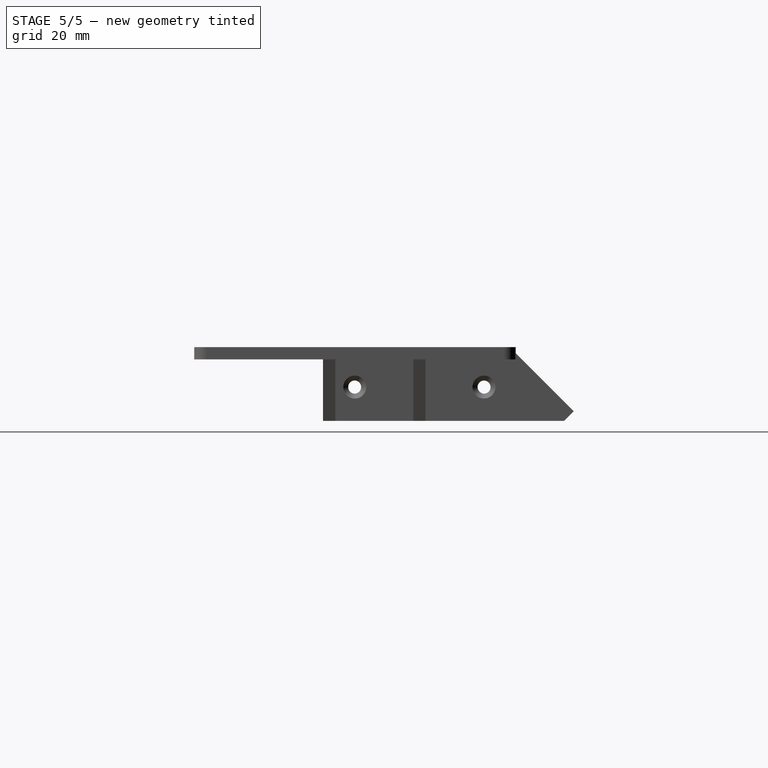
[diagram: stage 5 of 5 — right view after this stage's code; geometry added in this stage tinted green]
FEATURE [Sketcher::SketchObject] Sketch005  label="Mount Base Cut Sketch"
  ExternalGeometry = -> [Pocket001]
  FullyConstrained = true
  MapMode = 5
  Placement = pos=(21,-1.88e-14,1.37e-14) rot=(0.57735,0.57735,0.57735;2.0944rad)
  Support = -> [Pocket001]
  sketch-geometry (5):
    g0: LineSegment StartX=37.6421 StartY=-5.89214 StartZ=0 EndX=30.5711 EndY=-12.9632 EndZ=0
    g1: LineSegment StartX=30.5711 StartY=-12.9632 StartZ=0 EndX=18.5503 EndY=-0.942388 EndZ=0
    g2: LineSegment StartX=18.5503 StartY=-0.942388 StartZ=0 EndX=15.0147 EndY=-4.47792 EndZ=0
    g3: LineSegment StartX=15.0147 StartY=-4.47792 StartZ=0 EndX=27.0355 EndY=-16.4987 EndZ=0
    g4: LineSegment StartX=30.5711 StartY=-12.9632 StartZ=0 EndX=27.0355 EndY=-16.4987 EndZ=0
  constraints (14):
    c: Coincident(g0,g-4)
    c: PointOnObject(g-3,g0)
    c: Distance(g0) = 10
    c: Coincident(g1,g0)
    c: Coincident(g2,g1)
    c: Coincident(g3,g2)
    c: Coincident(g4,g1)
    c: Coincident(g4,g3)
    c: Perpendicular(g1,g4)
    c: Perpendicular(g2,g3)
    c: Parallel(g4,g2)
    c: Perpendicular(g1,g0)
    c: Distance(g4) = 5
    c: Distance(g1) = 17
FEATURE [PartDesign::Pocket] Pocket002  label="Mount Base Cut"
  BaseFeature = -> Pocket001
  Direction = (-1,8e-16,-6e-16)
  Length = 16
  Length2 = 5
  Placement = pos=(0,0,0) rot=(0.57735,0.57735,0.57735;2.0944rad)
  Profile = -> Sketch005
  ReferenceAxis = -> Sketch005 [N_Axis]
  Type = 0
FEATURE [Sketcher::SketchObject] Sketch006  label="Main Support Sketch"
  ExternalGeometry = -> [Pocket]
  FullyConstrained = true
  MapMode = 5
  Placement = pos=(5,-4.4e-15,2.8e-15) rot=(0.57735,0.57735,0.57735;2.0944rad)
  Support = -> [Pocket]
  sketch-geometry (4):
    g0: LineSegment StartX=-1.5 StartY=3.75 StartZ=0 EndX=1.5 EndY=3.75 EndZ=0
    g1: LineSegment StartX=1.5 StartY=3.75 StartZ=0 EndX=1.5 EndY=-8.25 EndZ=0
    g2: LineSegment StartX=1.5 StartY=-8.25 StartZ=0 EndX=-1.5 EndY=-8.25 EndZ=0
    g3: LineSegment StartX=-1.5 StartY=-8.25 StartZ=0 EndX=-1.5 EndY=3.75 EndZ=0
  constraints (11):
    c: Coincident(g0,g1)
    c: Coincident(g1,g2)
    c: Coincident(g2,g3)
    c: Coincident(g3,g0)
    c: Horizontal(g0)
    c: Vertical(g1)
    c: Vertical(g3)
    c: DistanceX(g2,g2) = 3
    c: Symmetric(g2,g1,g-2)
    c: PointOnObject(g2,g-3)
    c: PointOnObject(g0,g-4)
FEATURE [PartDesign::Pad] Pad003  label="Mount Support Pad"
  BaseFeature = -> Pocket002
  Direction = (1,-8e-16,6e-16)
  Length = 16
  Length2 = 10
  Placement = pos=(0,0,0) rot=(0.57735,0.57735,0.57735;2.0944rad)
  Profile = -> Sketch006
  ReferenceAxis = -> Sketch006 [N_Axis]
  Refine = true
  Type = 3
  UpToFace = -> Pocket002 [Face11]
FEATURE [Sketcher::SketchObject] Sketch008  label="Offset Cut Sketch"
  ExternalGeometry = -> [Pocket001]
  FullyConstrained = true
  MapMode = 5
  Placement = pos=(0,0,0) rot=(-0.57735,-0.57735,0.57735;2.0944rad)
  Support = -> [Pocket001]
  sketch-geometry (4):
    g0: LineSegment StartX=23.5 StartY=8.25 StartZ=0 EndX=24.9 EndY=8.25 EndZ=0
    g1: LineSegment StartX=24.9 StartY=8.25 StartZ=0 EndX=24.9 EndY=-8.25 EndZ=0
    g2: LineSegment StartX=24.9 StartY=-8.25 StartZ=0 EndX=23.5 EndY=-8.25 EndZ=0
    g3: LineSegment StartX=23.5 StartY=-8.25 StartZ=0 EndX=23.5 EndY=8.25 EndZ=0
  constraints (10):
    c: Coincident(g0,g1)
    c: Coincident(g1,g2)
    c: Coincident(g2,g3)
    c: Coincident(g3,g0)
    c: Horizontal(g0)
    c: Horizontal(g2)
    c: Vertical(g1)
    c: Coincident(g0,g-4)
    c: Coincident(g2,g-4)
    c: DistanceX(g0,g0) = 1.4
FEATURE [PartDesign::Pocket] Pocket003  label="Offset Sketch"
  BaseFeature = -> Pad003
  Direction = (1,-1.3e-15,8e-16)
  Length = 1.6
  Length2 = 5
  Placement = pos=(0,0,0) rot=(0.57735,0.57735,0.57735;2.0944rad)
  Profile = -> Sketch008
  ReferenceAxis = -> Sketch008 [N_Axis]
  Type = 0
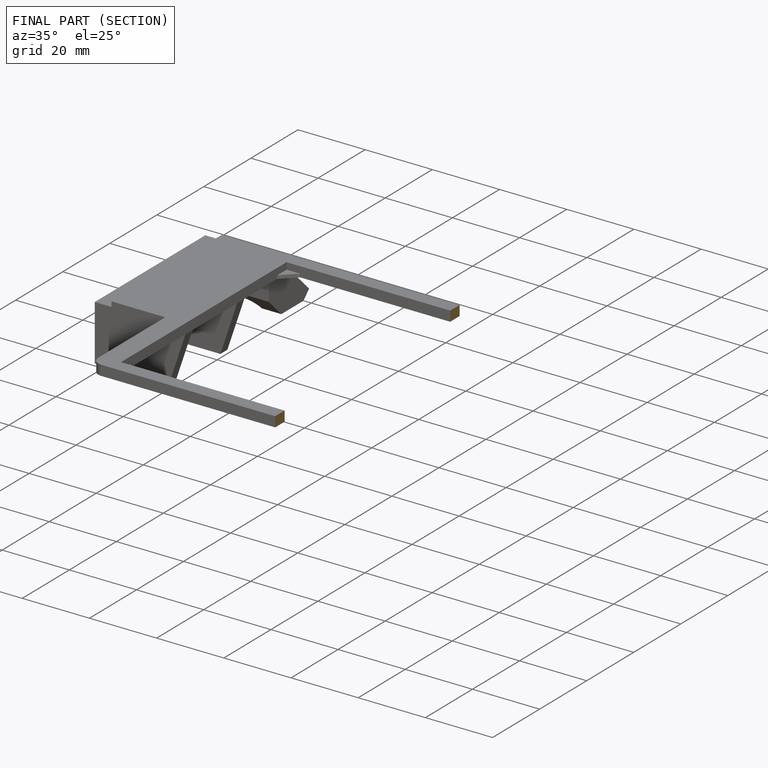
[diagram: finished part — half-section view (interior)]
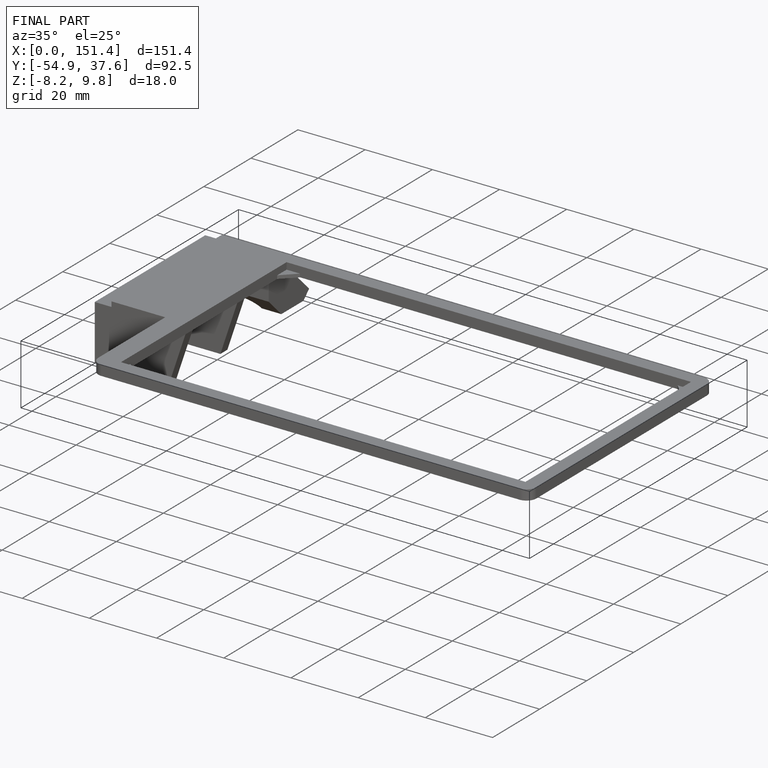
[diagram: finished part — iso view with bounding-box wireframe]
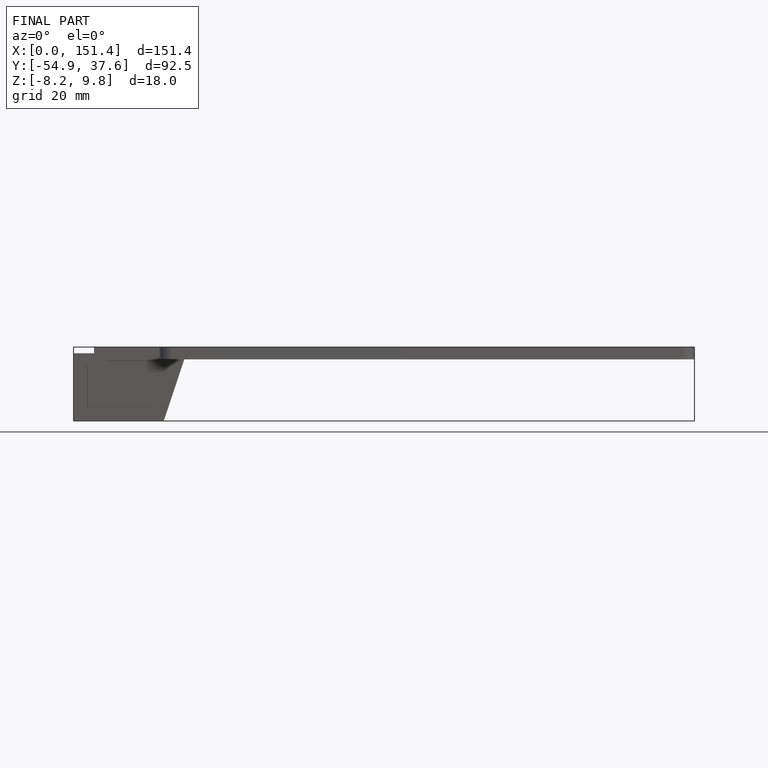
[diagram: finished part — front view with bounding-box wireframe]
